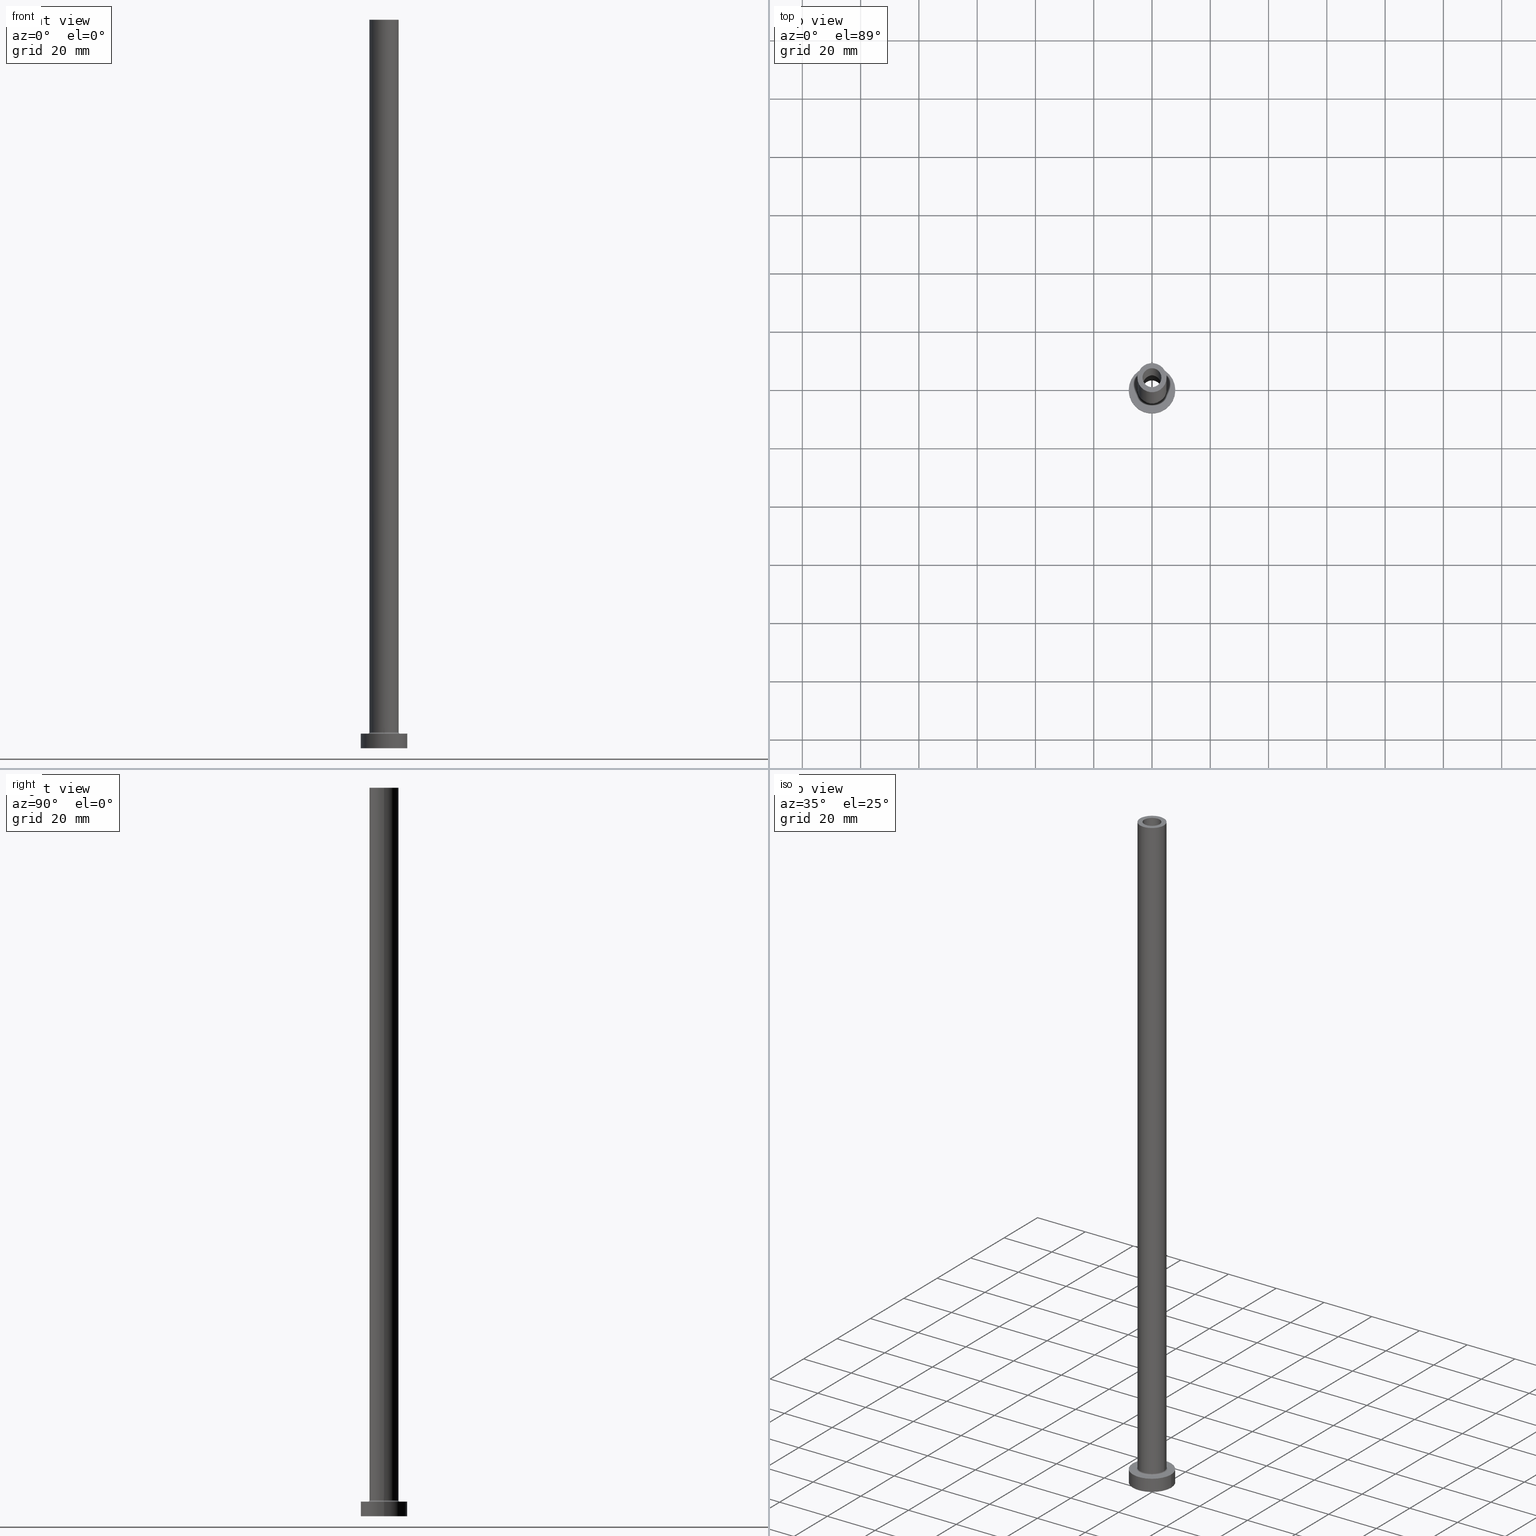
[diagram: canonical four-view strip — front | top / right | iso, engineering-drawing reading convention]
A machine part, canonical four-view strip (front | top / right | iso — engineering-drawing reading convention). The complete STEP part file that produces these views, byte-faithful:
ISO-10303-21;
HEADER;
FILE_DESCRIPTION (( 'STEP AP203' ),
    '1' );
FILE_NAME ('ba3c.STEP',
    '2023-02-13T14:02:09',
    ( '' ),
    ( '' ),
    'SwSTEP 2.0',
    'SolidWorks 2019',
    '' );
FILE_SCHEMA (( 'CONFIG_CONTROL_DESIGN' ));
ENDSEC;

DATA;
#1 = CARTESIAN_POINT ( 'NONE',  ( 3.399999999999999911, 4.163799117101000559E-16, 214.6166522241370558 ) ) ;
#2 = DIRECTION ( 'NONE',  ( -0.000000000000000000, -0.000000000000000000, -1.000000000000000000 ) ) ;
#3 = ORIENTED_EDGE ( 'NONE', *, *, #214, .F. ) ;
#4 = EDGE_CURVE ( 'NONE', #241, #339, #194, .T. ) ;
#5 = DIRECTION ( 'NONE',  ( -0.000000000000000000, -0.000000000000000000, -1.000000000000000000 ) ) ;
#6 = CARTESIAN_POINT ( 'NONE',  ( 0.000000000000000000, 0.000000000000000000, 205.0000000000000284 ) ) ;
#7 = DIRECTION ( 'NONE',  ( 1.000000000000000000, 0.000000000000000000, 0.000000000000000000 ) ) ;
#8 = AXIS2_PLACEMENT_3D ( 'NONE', #31, #451, #276 ) ;
#9 = EDGE_CURVE ( 'NONE', #207, #307, #457, .T. ) ;
#10 = CARTESIAN_POINT ( 'NONE',  ( 0.000000000000000000, 0.000000000000000000, 214.6166522241370558 ) ) ;
#11 = DIRECTION ( 'NONE',  ( 0.000000000000000000, 0.000000000000000000, -1.000000000000000000 ) ) ;
#12 = AXIS2_PLACEMENT_3D ( 'NONE', #51, #373, #120 ) ;
#13 = AXIS2_PLACEMENT_3D ( 'NONE', #195, #158, #46 ) ;
#14 = CARTESIAN_POINT ( 'NONE',  ( 5.500000000000000000, 0.000000000000000000, 5.000000000000002665 ) ) ;
#15 = CARTESIAN_POINT ( 'NONE',  ( 0.000000000000000000, 0.000000000000000000, 205.0000000000000284 ) ) ;
#16 = FACE_BOUND ( 'NONE', #212, .T. ) ;
#17 = LOCAL_TIME ( 15, 2, 9.000000000000000000, #349 ) ;
#18 = CYLINDRICAL_SURFACE ( 'NONE', #292, 5.000000000000000000 ) ;
#19 = DIRECTION ( 'NONE',  ( 1.000000000000000000, 0.000000000000000000, -0.000000000000000000 ) ) ;
#20 =( LENGTH_UNIT ( ) NAMED_UNIT ( * ) SI_UNIT ( .MILLI., .METRE. ) );
#21 = EDGE_LOOP ( 'NONE', ( #450, #33, #284, #213 ) ) ;
#22 = ADVANCED_FACE ( 'NONE', ( #83 ), #225, .T. ) ;
#23 = FACE_BOUND ( 'NONE', #374, .T. ) ;
#24 = DIRECTION ( 'NONE',  ( -1.000000000000000000, 1.224646799147351482E-16, 0.000000000000000000 ) ) ;
#25 = CIRCLE ( 'NONE', #240, 3.250000000000000444 ) ;
#26 = ORIENTED_EDGE ( 'NONE', *, *, #299, .T. ) ;
#27 = VERTEX_POINT ( 'NONE', #157 ) ;
#28 = PERSON_AND_ORGANIZATION ( #320, #62 ) ;
#29 = ORIENTED_EDGE ( 'NONE', *, *, #275, .T. ) ;
#30 = CIRCLE ( 'NONE', #305, 3.399999999999999911 ) ;
#31 = CARTESIAN_POINT ( 'NONE',  ( 0.000000000000000000, 0.000000000000000000, 0.000000000000000000 ) ) ;
#32 = CARTESIAN_POINT ( 'NONE',  ( 0.000000000000000000, 0.000000000000000000, 5.000000000000000000 ) ) ;
#33 = ORIENTED_EDGE ( 'NONE', *, *, #121, .T. ) ;
#34 = CARTESIAN_POINT ( 'NONE',  ( -3.250000000000000444, 0.000000000000000000, 205.0000000000000284 ) ) ;
#35 = CARTESIAN_POINT ( 'NONE',  ( 0.000000000000000000, 0.000000000000000000, 5.000000000000000000 ) ) ;
#36 = EDGE_CURVE ( 'NONE', #307, #207, #455, .T. ) ;
#37 = DIRECTION ( 'NONE',  ( 0.000000000000000000, 0.000000000000000000, -1.000000000000000000 ) ) ;
#38 = CARTESIAN_POINT ( 'NONE',  ( 3.399999999999999911, 4.163799117101000559E-16, 0.000000000000000000 ) ) ;
#39 = AXIS2_PLACEMENT_3D ( 'NONE', #220, #285, #218 ) ;
#40 = CIRCLE ( 'NONE', #446, 3.399999999999999911 ) ;
#41 = LINE ( 'NONE', #334, #406 ) ;
#42 = DIRECTION ( 'NONE',  ( 0.000000000000000000, 0.000000000000000000, 1.000000000000000000 ) ) ;
#43 = EDGE_CURVE ( 'NONE', #210, #159, #350, .T. ) ;
#44 = VECTOR ( 'NONE', #369, 1000.000000000000000 ) ;
#45 = CARTESIAN_POINT ( 'NONE',  ( 0.000000000000000000, 0.000000000000000000, 250.0000000000000000 ) ) ;
#46 = DIRECTION ( 'NONE',  ( -1.000000000000000000, 0.000000000000000000, 0.000000000000000000 ) ) ;
#47 = CIRCLE ( 'NONE', #136, 0.5000000000000004441 ) ;
#48 = FACE_OUTER_BOUND ( 'NONE', #216, .T. ) ;
#49 = APPROVAL ( #54, 'NEUR�EN�' ) ;
#50 = DIRECTION ( 'NONE',  ( 0.000000000000000000, 0.000000000000000000, 1.000000000000000000 ) ) ;
#51 = CARTESIAN_POINT ( 'NONE',  ( 0.000000000000000000, 0.000000000000000000, 0.000000000000000000 ) ) ;
#52 = LOCAL_TIME ( 15, 2, 9.000000000000000000, #130 ) ;
#53 = ORIENTED_EDGE ( 'NONE', *, *, #74, .T. ) ;
#54 = APPROVAL_STATUS ( 'not_yet_approved' ) ;
#55 = ORIENTED_EDGE ( 'NONE', *, *, #121, .F. ) ;
#56 = EDGE_LOOP ( 'NONE', ( #163, #90 ) ) ;
#57 = DIRECTION ( 'NONE',  ( 0.000000000000000000, 0.000000000000000000, 1.000000000000000000 ) ) ;
#58 = EDGE_LOOP ( 'NONE', ( #53, #141, #422, #70 ) ) ;
#59 = ORIENTED_EDGE ( 'NONE', *, *, #103, .T. ) ;
#60 = APPROVAL_ROLE ( '' ) ;
#61 = PRODUCT_DEFINITION ( 'NEZN�M�', '', #175, #391 ) ;
#62 = ORGANIZATION ( 'NEUR�EN�', 'NEUR�EN�', '' ) ;
#63 = APPROVAL_DATE_TIME ( #200, #49 ) ;
#64 = CC_DESIGN_SECURITY_CLASSIFICATION ( #410, ( #175 ) ) ;
#65 = DIRECTION ( 'NONE',  ( 0.000000000000000000, 0.000000000000000000, 1.000000000000000000 ) ) ;
#66 = ORIENTED_EDGE ( 'NONE', *, *, #145, .F. ) ;
#67 = AXIS2_PLACEMENT_3D ( 'NONE', #45, #190, #333 ) ;
#68 = AXIS2_PLACEMENT_3D ( 'NONE', #370, #442, #24 ) ;
#69 = DIRECTION ( 'NONE',  ( -0.000000000000000000, -0.000000000000000000, -1.000000000000000000 ) ) ;
#70 = ORIENTED_EDGE ( 'NONE', *, *, #275, .F. ) ;
#71 = FACE_OUTER_BOUND ( 'NONE', #416, .T. ) ;
#72 = ORIENTED_EDGE ( 'NONE', *, *, #87, .T. ) ;
#73 = DIRECTION ( 'NONE',  ( -0.000000000000000000, -0.000000000000000000, -1.000000000000000000 ) ) ;
#74 = EDGE_CURVE ( 'NONE', #27, #98, #365, .T. ) ;
#75 = FACE_OUTER_BOUND ( 'NONE', #412, .T. ) ;
#76 = VECTOR ( 'NONE', #73, 1000.000000000000000 ) ;
#77 = DIRECTION ( 'NONE',  ( 0.000000000000000000, 0.000000000000000000, 1.000000000000000000 ) ) ;
#78 = CARTESIAN_POINT ( 'NONE',  ( 0.000000000000000000, 0.000000000000000000, 5.000000000000000000 ) ) ;
#79 = CARTESIAN_POINT ( 'NONE',  ( 0.000000000000000000, 0.000000000000000000, 250.0000000000000000 ) ) ;
#80 = CARTESIAN_POINT ( 'NONE',  ( -3.399999999999999911, 0.000000000000000000, 205.0000000000000284 ) ) ;
#81 = PRODUCT_RELATED_PRODUCT_CATEGORY ( 'detail', '', ( #197 ) ) ;
#82 =( NAMED_UNIT ( * ) PLANE_ANGLE_UNIT ( ) SI_UNIT ( $, .RADIAN. ) );
#83 = FACE_OUTER_BOUND ( 'NONE', #126, .T. ) ;
#84 = DIRECTION ( 'NONE',  ( 0.000000000000000000, 0.000000000000000000, 1.000000000000000000 ) ) ;
#85 = DIRECTION ( 'NONE',  ( -1.000000000000000000, 0.000000000000000000, 0.000000000000000000 ) ) ;
#86 = CARTESIAN_POINT ( 'NONE',  ( 3.399999999999999911, 4.163799117101000559E-16, 205.0000000000000284 ) ) ;
#87 = EDGE_CURVE ( 'NONE', #310, #286, #184, .T. ) ;
#88 = AXIS2_PLACEMENT_3D ( 'NONE', #327, #392, #430 ) ;
#89 = CIRCLE ( 'NONE', #39, 5.000000000000000000 ) ;
#90 = ORIENTED_EDGE ( 'NONE', *, *, #9, .T. ) ;
#91 = ORIENTED_EDGE ( 'NONE', *, *, #336, .T. ) ;
#92 = DATE_TIME_ROLE ( 'classification_date' ) ;
#93 = VERTEX_POINT ( 'NONE', #80 ) ;
#94 = ORIENTED_EDGE ( 'NONE', *, *, #192, .T. ) ;
#95 = CALENDAR_DATE ( 2023, 13, 2 ) ;
#96 = ORIENTED_EDGE ( 'NONE', *, *, #428, .T. ) ;
#97 = ADVANCED_FACE ( 'NONE', ( #456, #278 ), #323, .F. ) ;
#98 = VERTEX_POINT ( 'NONE', #237 ) ;
#99 = APPROVAL_ROLE ( '' ) ;
#100 = EDGE_LOOP ( 'NONE', ( #280, #271 ) ) ;
#101 = DATE_AND_TIME ( #95, #357 ) ;
#102 = ORIENTED_EDGE ( 'NONE', *, *, #4, .T. ) ;
#103 = EDGE_CURVE ( 'NONE', #339, #241, #30, .T. ) ;
#104 = APPROVAL_PERSON_ORGANIZATION ( #28, #152, #60 ) ;
#105 = EDGE_LOOP ( 'NONE', ( #55, #3, #134, #302 ) ) ;
#106 = DIRECTION ( 'NONE',  ( 1.000000000000000000, 0.000000000000000000, 0.000000000000000000 ) ) ;
#107 = ORIENTED_EDGE ( 'NONE', *, *, #43, .F. ) ;
#108 = CARTESIAN_POINT ( 'NONE',  ( 0.000000000000000000, 0.000000000000000000, 5.500000000000005329 ) ) ;
#109 = LOCAL_TIME ( 15, 2, 9.000000000000000000, #202 ) ;
#110 = EDGE_CURVE ( 'NONE', #129, #241, #460, .T. ) ;
#111 = AXIS2_PLACEMENT_3D ( 'NONE', #32, #77, #398 ) ;
#112 = CARTESIAN_POINT ( 'NONE',  ( 0.000000000000000000, 0.000000000000000000, 5.500000000000005329 ) ) ;
#113 = CIRCLE ( 'NONE', #173, 3.250000000000000444 ) ;
#114 = DIRECTION ( 'NONE',  ( -1.000000000000000000, 0.000000000000000000, 0.000000000000000000 ) ) ;
#115 = DIRECTION ( 'NONE',  ( 0.000000000000000000, 0.000000000000000000, 1.000000000000000000 ) ) ;
#116 = FACE_OUTER_BOUND ( 'NONE', #319, .T. ) ;
#117 = EDGE_CURVE ( 'NONE', #444, #123, #335, .T. ) ;
#118 = DIRECTION ( 'NONE',  ( 1.000000000000000000, 0.000000000000000000, 0.000000000000000000 ) ) ;
#119 = DIRECTION ( 'NONE',  ( -0.000000000000000000, -0.000000000000000000, -1.000000000000000000 ) ) ;
#120 = DIRECTION ( 'NONE',  ( 1.000000000000000000, 0.000000000000000000, 0.000000000000000000 ) ) ;
#121 = EDGE_CURVE ( 'NONE', #444, #407, #127, .T. ) ;
#122 = DIRECTION ( 'NONE',  ( 1.000000000000000000, 0.000000000000000000, -0.000000000000000000 ) ) ;
#123 = VERTEX_POINT ( 'NONE', #295 ) ;
#124 = CIRCLE ( 'NONE', #209, 5.500000000000000000 ) ;
#125 = DIRECTION ( 'NONE',  ( 1.000000000000000000, 0.000000000000000000, 0.000000000000000000 ) ) ;
#126 = EDGE_LOOP ( 'NONE', ( #358, #388, #239, #338 ) ) ;
#127 = CIRCLE ( 'NONE', #68, 0.5000000000000004441 ) ;
#128 = ORIENTED_EDGE ( 'NONE', *, *, #428, .F. ) ;
#129 = VERTEX_POINT ( 'NONE', #86 ) ;
#130 = COORDINATED_UNIVERSAL_TIME_OFFSET ( 1, 0, .AHEAD. ) ;
#131 = CC_DESIGN_PERSON_AND_ORGANIZATION_ASSIGNMENT ( #454, #236, ( #61 ) ) ;
#132 = CC_DESIGN_APPROVAL ( #152, ( #410 ) ) ;
#133 = ORIENTED_EDGE ( 'NONE', *, *, #214, .T. ) ;
#134 = ORIENTED_EDGE ( 'NONE', *, *, #261, .T. ) ;
#135 = CALENDAR_DATE ( 2023, 13, 2 ) ;
#136 = AXIS2_PLACEMENT_3D ( 'NONE', #360, #185, #355 ) ;
#137 = PERSON_AND_ORGANIZATION_ROLE ( 'classification_officer' ) ;
#138 = EDGE_CURVE ( 'NONE', #286, #310, #25, .T. ) ;
#139 = CIRCLE ( 'NONE', #257, 8.000000000000000000 ) ;
#140 = CALENDAR_DATE ( 2023, 13, 2 ) ;
#141 = ORIENTED_EDGE ( 'NONE', *, *, #344, .T. ) ;
#142 = DIRECTION ( 'NONE',  ( 0.000000000000000000, 0.000000000000000000, 1.000000000000000000 ) ) ;
#143 = VERTEX_POINT ( 'NONE', #436 ) ;
#144 = CARTESIAN_POINT ( 'NONE',  ( 0.000000000000000000, 0.000000000000000000, 250.0000000000000000 ) ) ;
#145 = EDGE_CURVE ( 'NONE', #129, #93, #40, .T. ) ;
#146 = FACE_OUTER_BOUND ( 'NONE', #325, .T. ) ;
#147 = AXIS2_PLACEMENT_3D ( 'NONE', #112, #291, #245 ) ;
#148 = FACE_OUTER_BOUND ( 'NONE', #105, .T. ) ;
#149 = DIRECTION ( 'NONE',  ( 1.000000000000000000, 0.000000000000000000, 0.000000000000000000 ) ) ;
#150 = AXIS2_PLACEMENT_3D ( 'NONE', #402, #301, #118 ) ;
#151 = CYLINDRICAL_SURFACE ( 'NONE', #170, 3.399999999999999911 ) ;
#152 = APPROVAL ( #308, 'NEUR�EN�' ) ;
#153 = CARTESIAN_POINT ( 'NONE',  ( 0.000000000000000000, 0.000000000000000000, 5.000000000000000000 ) ) ;
#154 = CC_DESIGN_APPROVAL ( #281, ( #175 ) ) ;
#155 = DIRECTION ( 'NONE',  ( -0.000000000000000000, -0.000000000000000000, -1.000000000000000000 ) ) ;
#156 = ADVANCED_FACE ( 'NONE', ( #75 ), #177, .T. ) ;
#157 = CARTESIAN_POINT ( 'NONE',  ( -3.250000000000000444, 0.000000000000000000, 250.0000000000000000 ) ) ;
#158 = DIRECTION ( 'NONE',  ( -0.000000000000000000, -0.000000000000000000, -1.000000000000000000 ) ) ;
#159 = VERTEX_POINT ( 'NONE', #459 ) ;
#160 = DIRECTION ( 'NONE',  ( 0.000000000000000000, 0.000000000000000000, 1.000000000000000000 ) ) ;
#161 = VECTOR ( 'NONE', #424, 1000.000000000000000 ) ;
#162 = ORIENTED_EDGE ( 'NONE', *, *, #87, .F. ) ;
#163 = ORIENTED_EDGE ( 'NONE', *, *, #36, .T. ) ;
#164 = APPLICATION_PROTOCOL_DEFINITION ( 'international standard', 'config_control_design', 1994, #395 ) ;
#165 = ADVANCED_FACE ( 'NONE', ( #254 ), #397, .F. ) ;
#166 = COORDINATED_UNIVERSAL_TIME_OFFSET ( 1, 0, .AHEAD. ) ;
#167 = EDGE_LOOP ( 'NONE', ( #243, #453 ) ) ;
#168 = ORIENTED_EDGE ( 'NONE', *, *, #219, .F. ) ;
#169 = PERSON_AND_ORGANIZATION ( #320, #62 ) ;
#170 = AXIS2_PLACEMENT_3D ( 'NONE', #211, #37, #324 ) ;
#171 = EDGE_CURVE ( 'NONE', #159, #210, #283, .T. ) ;
#172 = PERSON_AND_ORGANIZATION ( #320, #62 ) ;
#173 = AXIS2_PLACEMENT_3D ( 'NONE', #144, #287, #249 ) ;
#174 = PERSON_AND_ORGANIZATION_ROLE ( 'design_owner' ) ;
#175 = PRODUCT_DEFINITION_FORMATION_WITH_SPECIFIED_SOURCE ( 'LIBOVOLN�', '', #197, .NOT_KNOWN. ) ;
#176 = LINE ( 'NONE', #322, #274 ) ;
#177 = CYLINDRICAL_SURFACE ( 'NONE', #372, 8.000000000000000000 ) ;
#178 = UNCERTAINTY_MEASURE_WITH_UNIT (LENGTH_MEASURE( 1.000000000000000082E-05 ), #20, 'distance_accuracy_value', 'NONE');
#179 = CARTESIAN_POINT ( 'NONE',  ( -5.000000000000000000, 0.000000000000000000, 250.0000000000000000 ) ) ;
#180 = EDGE_CURVE ( 'NONE', #159, #143, #181, .T. ) ;
#181 = LINE ( 'NONE', #437, #371 ) ;
#182 = DIRECTION ( 'NONE',  ( -1.000000000000000000, 0.000000000000000000, 0.000000000000000000 ) ) ;
#183 = ADVANCED_FACE ( 'NONE', ( #426 ), #326, .F. ) ;
#184 = CIRCLE ( 'NONE', #242, 3.250000000000000444 ) ;
#185 = DIRECTION ( 'NONE',  ( 0.000000000000000000, -1.000000000000000000, 0.000000000000000000 ) ) ;
#186 = AXIS2_PLACEMENT_3D ( 'NONE', #259, #221, #364 ) ;
#187 = LINE ( 'NONE', #294, #44 ) ;
#188 = DIRECTION ( 'NONE',  ( 1.000000000000000000, 0.000000000000000000, 0.000000000000000000 ) ) ;
#189 = CARTESIAN_POINT ( 'NONE',  ( 0.000000000000000000, 0.000000000000000000, 205.0000000000000284 ) ) ;
#190 = DIRECTION ( 'NONE',  ( -0.000000000000000000, -0.000000000000000000, -1.000000000000000000 ) ) ;
#191 = CARTESIAN_POINT ( 'NONE',  ( -3.399999999999999911, 0.000000000000000000, 0.000000000000000000 ) ) ;
#192 = EDGE_CURVE ( 'NONE', #207, #123, #176, .T. ) ;
#193 = CIRCLE ( 'NONE', #314, 5.500000000000000000 ) ;
#194 = CIRCLE ( 'NONE', #277, 3.399999999999999911 ) ;
#195 = CARTESIAN_POINT ( 'NONE',  ( 0.000000000000000000, 0.000000000000000000, 5.000000000000000000 ) ) ;
#196 = CARTESIAN_POINT ( 'NONE',  ( 0.000000000000000000, 0.000000000000000000, 250.0000000000000000 ) ) ;
#197 = PRODUCT ( 'ba3c', 'ba3c', '', ( #379 ) ) ;
#198 = ORIENTED_EDGE ( 'NONE', *, *, #377, .T. ) ;
#199 = EDGE_CURVE ( 'NONE', #307, #444, #429, .T. ) ;
#200 = DATE_AND_TIME ( #135, #52 ) ;
#201 = PERSON_AND_ORGANIZATION ( #320, #62 ) ;
#202 = COORDINATED_UNIVERSAL_TIME_OFFSET ( 1, 0, .AHEAD. ) ;
#203 = ADVANCED_FACE ( 'NONE', ( #71 ), #251, .F. ) ;
#204 = PERSON_AND_ORGANIZATION ( #320, #62 ) ;
#205 = DIRECTION ( 'NONE',  ( 1.000000000000000000, 0.000000000000000000, 0.000000000000000000 ) ) ;
#206 = CIRCLE ( 'NONE', #12, 8.000000000000000000 ) ;
#207 = VERTEX_POINT ( 'NONE', #289 ) ;
#208 = PERSON_AND_ORGANIZATION_ROLE ( 'creator' ) ;
#209 = AXIS2_PLACEMENT_3D ( 'NONE', #440, #262, #297 ) ;
#210 = VERTEX_POINT ( 'NONE', #215 ) ;
#211 = CARTESIAN_POINT ( 'NONE',  ( 0.000000000000000000, 0.000000000000000000, 214.6166522241370558 ) ) ;
#212 = EDGE_LOOP ( 'NONE', ( #354, #72 ) ) ;
#213 = ORIENTED_EDGE ( 'NONE', *, *, #261, .F. ) ;
#214 = EDGE_CURVE ( 'NONE', #123, #444, #89, .T. ) ;
#215 = CARTESIAN_POINT ( 'NONE',  ( -8.000000000000000000, 0.000000000000000000, 5.000000000000000000 ) ) ;
#216 = EDGE_LOOP ( 'NONE', ( #417, #235, #96, #168 ) ) ;
#217 = CARTESIAN_POINT ( 'NONE',  ( -5.000000000000000000, 0.000000000000000000, 250.0000000000000000 ) ) ;
#218 = DIRECTION ( 'NONE',  ( 1.000000000000000000, 0.000000000000000000, 0.000000000000000000 ) ) ;
#219 = EDGE_CURVE ( 'NONE', #210, #238, #258, .T. ) ;
#220 = CARTESIAN_POINT ( 'NONE',  ( 0.000000000000000000, 0.000000000000000000, 5.500000000000005329 ) ) ;
#221 = DIRECTION ( 'NONE',  ( 0.000000000000000000, 0.000000000000000000, 1.000000000000000000 ) ) ;
#222 = AXIS2_PLACEMENT_3D ( 'NONE', #313, #65, #351 ) ;
#223 = PRODUCT_DEFINITION_SHAPE ( 'NONE', 'NONE',  #61 ) ;
#224 = DIRECTION ( 'NONE',  ( 1.000000000000000000, 0.000000000000000000, -0.000000000000000000 ) ) ;
#225 = CYLINDRICAL_SURFACE ( 'NONE', #67, 5.000000000000000000 ) ;
#226 = DIRECTION ( 'NONE',  ( 1.000000000000000000, 0.000000000000000000, 0.000000000000000000 ) ) ;
#227 = CC_DESIGN_PERSON_AND_ORGANIZATION_ASSIGNMENT ( #169, #174, ( #197 ) ) ;
#228 = FACE_OUTER_BOUND ( 'NONE', #421, .T. ) ;
#229 = ORIENTED_EDGE ( 'NONE', *, *, #110, .T. ) ;
#230 = APPLICATION_PROTOCOL_DEFINITION ( 'international standard', 'config_control_design', 1994, #386 ) ;
#231 = EDGE_LOOP ( 'NONE', ( #346, #279 ) ) ;
#232 = VERTEX_POINT ( 'NONE', #14 ) ;
#233 = PERSON_AND_ORGANIZATION ( #320, #62 ) ;
#234 = ADVANCED_FACE ( 'NONE', ( #116 ), #151, .F. ) ;
#235 = ORIENTED_EDGE ( 'NONE', *, *, #180, .T. ) ;
#236 = PERSON_AND_ORGANIZATION_ROLE ( 'creator' ) ;
#237 = CARTESIAN_POINT ( 'NONE',  ( 3.250000000000000444, 3.980102097228897245E-16, 250.0000000000000000 ) ) ;
#238 = VERTEX_POINT ( 'NONE', #255 ) ;
#239 = ORIENTED_EDGE ( 'NONE', *, *, #199, .T. ) ;
#240 = AXIS2_PLACEMENT_3D ( 'NONE', #341, #57, #250 ) ;
#241 = VERTEX_POINT ( 'NONE', #38 ) ;
#242 = AXIS2_PLACEMENT_3D ( 'NONE', #15, #401, #149 ) ;
#243 = ORIENTED_EDGE ( 'NONE', *, *, #352, .T. ) ;
#244 = CC_DESIGN_PERSON_AND_ORGANIZATION_ASSIGNMENT ( #233, #137, ( #410 ) ) ;
#245 = DIRECTION ( 'NONE',  ( 1.000000000000000000, 0.000000000000000000, 0.000000000000000000 ) ) ;
#246 = CARTESIAN_POINT ( 'NONE',  ( 0.000000000000000000, 0.000000000000000000, 0.000000000000000000 ) ) ;
#247 = DIRECTION ( 'NONE',  ( 0.000000000000000000, 0.000000000000000000, 1.000000000000000000 ) ) ;
#248 = CARTESIAN_POINT ( 'NONE',  ( 0.000000000000000000, 0.000000000000000000, 5.000000000000000000 ) ) ;
#249 = DIRECTION ( 'NONE',  ( 1.000000000000000000, 0.000000000000000000, 0.000000000000000000 ) ) ;
#250 = DIRECTION ( 'NONE',  ( 1.000000000000000000, 0.000000000000000000, 0.000000000000000000 ) ) ;
#251 = CYLINDRICAL_SURFACE ( 'NONE', #88, 3.250000000000000444 ) ;
#252 = ADVANCED_FACE ( 'NONE', ( #148 ), #304, .F. ) ;
#253 = VECTOR ( 'NONE', #363, 1000.000000000000000 ) ;
#254 = FACE_OUTER_BOUND ( 'NONE', #447, .T. ) ;
#255 = CARTESIAN_POINT ( 'NONE',  ( -8.000000000000000000, 0.000000000000000000, 0.000000000000000000 ) ) ;
#256 = DIRECTION ( 'NONE',  ( 0.000000000000000000, 0.000000000000000000, 1.000000000000000000 ) ) ;
#257 = AXIS2_PLACEMENT_3D ( 'NONE', #405, #84, #226 ) ;
#258 = LINE ( 'NONE', #329, #76 ) ;
#259 = CARTESIAN_POINT ( 'NONE',  ( 0.000000000000000000, 0.000000000000000000, 250.0000000000000000 ) ) ;
#260 = CARTESIAN_POINT ( 'NONE',  ( 0.000000000000000000, 0.000000000000000000, 250.0000000000000000 ) ) ;
#261 = EDGE_CURVE ( 'NONE', #123, #232, #47, .T. ) ;
#262 = DIRECTION ( 'NONE',  ( -0.000000000000000000, -0.000000000000000000, -1.000000000000000000 ) ) ;
#263 = CARTESIAN_POINT ( 'NONE',  ( 3.250000000000000444, 3.980102097228897245E-16, 205.0000000000000284 ) ) ;
#264 = ORIENTED_EDGE ( 'NONE', *, *, #74, .F. ) ;
#265 =( NAMED_UNIT ( * ) SI_UNIT ( $, .STERADIAN. ) SOLID_ANGLE_UNIT ( ) );
#266 = AXIS2_PLACEMENT_3D ( 'NONE', #10, #290, #182 ) ;
#267 = ADVANCED_FACE ( 'NONE', ( #434 ), #268, .F. ) ;
#268 = TOROIDAL_SURFACE ( 'NONE', #396, 5.500000000000000000, 0.5000000000000000000 ) ;
#269 = ORIENTED_EDGE ( 'NONE', *, *, #199, .F. ) ;
#270 = PLANE ( 'NONE',  #356 ) ;
#271 = ORIENTED_EDGE ( 'NONE', *, *, #4, .F. ) ;
#272 = ORIENTED_EDGE ( 'NONE', *, *, #344, .F. ) ;
#273 = APPROVAL_ROLE ( '' ) ;
#274 = VECTOR ( 'NONE', #362, 1000.000000000000000 ) ;
#275 = EDGE_CURVE ( 'NONE', #27, #286, #293, .T. ) ;
#276 = DIRECTION ( 'NONE',  ( 1.000000000000000000, 0.000000000000000000, 0.000000000000000000 ) ) ;
#277 = AXIS2_PLACEMENT_3D ( 'NONE', #246, #119, #443 ) ;
#278 = FACE_OUTER_BOUND ( 'NONE', #458, .T. ) ;
#279 = ORIENTED_EDGE ( 'NONE', *, *, #171, .T. ) ;
#280 = ORIENTED_EDGE ( 'NONE', *, *, #103, .F. ) ;
#281 = APPROVAL ( #415, 'NEUR�EN�' ) ;
#282 = CARTESIAN_POINT ( 'NONE',  ( 0.000000000000000000, 0.000000000000000000, 0.000000000000000000 ) ) ;
#283 = CIRCLE ( 'NONE', #111, 8.000000000000000000 ) ;
#284 = ORIENTED_EDGE ( 'NONE', *, *, #352, .F. ) ;
#285 = DIRECTION ( 'NONE',  ( 0.000000000000000000, 0.000000000000000000, 1.000000000000000000 ) ) ;
#286 = VERTEX_POINT ( 'NONE', #34 ) ;
#287 = DIRECTION ( 'NONE',  ( 0.000000000000000000, 0.000000000000000000, 1.000000000000000000 ) ) ;
#288 =( GEOMETRIC_REPRESENTATION_CONTEXT ( 3 ) GLOBAL_UNCERTAINTY_ASSIGNED_CONTEXT ( ( #178 ) ) GLOBAL_UNIT_ASSIGNED_CONTEXT ( ( #20, #82, #265 ) ) REPRESENTATION_CONTEXT ( 'NONE', 'WORKASPACE' ) );
#289 = CARTESIAN_POINT ( 'NONE',  ( 5.000000000000000000, 6.123233995736766282E-16, 250.0000000000000000 ) ) ;
#290 = DIRECTION ( 'NONE',  ( 0.000000000000000000, 0.000000000000000000, -1.000000000000000000 ) ) ;
#291 = DIRECTION ( 'NONE',  ( 0.000000000000000000, 0.000000000000000000, 1.000000000000000000 ) ) ;
#292 = AXIS2_PLACEMENT_3D ( 'NONE', #367, #155, #85 ) ;
#293 = LINE ( 'NONE', #359, #353 ) ;
#294 = CARTESIAN_POINT ( 'NONE',  ( -3.399999999999999911, 0.000000000000000000, 214.6166522241370558 ) ) ;
#295 = CARTESIAN_POINT ( 'NONE',  ( 5.000000000000000000, 6.123233995736766282E-16, 5.500000000000005329 ) ) ;
#296 = EDGE_CURVE ( 'NONE', #407, #232, #193, .T. ) ;
#297 = DIRECTION ( 'NONE',  ( 1.000000000000000000, 0.000000000000000000, 0.000000000000000000 ) ) ;
#298 = PLANE ( 'NONE',  #433 ) ;
#299 = EDGE_CURVE ( 'NONE', #98, #27, #113, .T. ) ;
#300 = ORIENTED_EDGE ( 'NONE', *, *, #299, .F. ) ;
#301 = DIRECTION ( 'NONE',  ( 0.000000000000000000, 0.000000000000000000, 1.000000000000000000 ) ) ;
#302 = ORIENTED_EDGE ( 'NONE', *, *, #296, .F. ) ;
#303 = CYLINDRICAL_SURFACE ( 'NONE', #13, 8.000000000000000000 ) ;
#304 = TOROIDAL_SURFACE ( 'NONE', #147, 5.500000000000000000, 0.5000000000000000000 ) ;
#305 = AXIS2_PLACEMENT_3D ( 'NONE', #420, #69, #205 ) ;
#306 = ORIENTED_EDGE ( 'NONE', *, *, #219, .T. ) ;
#307 = VERTEX_POINT ( 'NONE', #217 ) ;
#308 = APPROVAL_STATUS ( 'not_yet_approved' ) ;
#309 = ADVANCED_FACE ( 'NONE', ( #146 ), #18, .T. ) ;
#310 = VERTEX_POINT ( 'NONE', #263 ) ;
#311 = MANIFOLD_SOLID_BREP ( 'Odebrat vysunut�m4', #414 ) ;
#312 = COORDINATED_UNIVERSAL_TIME_OFFSET ( 1, 0, .AHEAD. ) ;
#313 = CARTESIAN_POINT ( 'NONE',  ( 0.000000000000000000, 0.000000000000000000, 5.500000000000005329 ) ) ;
#314 = AXIS2_PLACEMENT_3D ( 'NONE', #35, #5, #7 ) ;
#315 = DIRECTION ( 'NONE',  ( -1.000000000000000000, 0.000000000000000000, 0.000000000000000000 ) ) ;
#316 = DATE_AND_TIME ( #340, #109 ) ;
#317 = APPROVAL_DATE_TIME ( #101, #281 ) ;
#318 = CC_DESIGN_DATE_AND_TIME_ASSIGNMENT ( #343, #92, ( #410 ) ) ;
#319 = EDGE_LOOP ( 'NONE', ( #452, #348, #385, #59 ) ) ;
#320 = PERSON ( 'NEUR�EN�', 'NEUR�EN�', 'NEUR�EN�', ('NEUR�EN�'), ('NEUR�EN�'), ('NEUR�EN�') ) ;
#321 = CC_DESIGN_APPROVAL ( #49, ( #61 ) ) ;
#322 = CARTESIAN_POINT ( 'NONE',  ( 5.000000000000000000, 6.123233995736766282E-16, 250.0000000000000000 ) ) ;
#323 = PLANE ( 'NONE',  #449 ) ;
#324 = DIRECTION ( 'NONE',  ( -1.000000000000000000, 0.000000000000000000, 0.000000000000000000 ) ) ;
#325 = EDGE_LOOP ( 'NONE', ( #381, #94, #133, #269 ) ) ;
#326 = CYLINDRICAL_SURFACE ( 'NONE', #431, 3.250000000000000444 ) ;
#327 = CARTESIAN_POINT ( 'NONE',  ( 0.000000000000000000, 0.000000000000000000, 250.0000000000000000 ) ) ;
#328 = AXIS2_PLACEMENT_3D ( 'NONE', #78, #256, #188 ) ;
#329 = CARTESIAN_POINT ( 'NONE',  ( -8.000000000000000000, 0.000000000000000000, 5.000000000000000000 ) ) ;
#330 = AXIS2_PLACEMENT_3D ( 'NONE', #79, #247, #368 ) ;
#331 = FACE_OUTER_BOUND ( 'NONE', #231, .T. ) ;
#332 = CARTESIAN_POINT ( 'NONE',  ( -5.500000000000000000, 6.735557395310442023E-16, 5.000000000000002665 ) ) ;
#333 = DIRECTION ( 'NONE',  ( -1.000000000000000000, 0.000000000000000000, 0.000000000000000000 ) ) ;
#334 = CARTESIAN_POINT ( 'NONE',  ( 3.250000000000000444, 3.980102097228897245E-16, 250.0000000000000000 ) ) ;
#335 = CIRCLE ( 'NONE', #222, 5.000000000000000000 ) ;
#336 = EDGE_CURVE ( 'NONE', #93, #129, #384, .T. ) ;
#337 = DIRECTION ( 'NONE',  ( 0.000000000000000000, 0.000000000000000000, -1.000000000000000000 ) ) ;
#338 = ORIENTED_EDGE ( 'NONE', *, *, #117, .T. ) ;
#339 = VERTEX_POINT ( 'NONE', #191 ) ;
#340 = CALENDAR_DATE ( 2023, 13, 2 ) ;
#341 = CARTESIAN_POINT ( 'NONE',  ( 0.000000000000000000, 0.000000000000000000, 205.0000000000000284 ) ) ;
#342 = ORIENTED_EDGE ( 'NONE', *, *, #180, .F. ) ;
#343 = DATE_AND_TIME ( #378, #17 ) ;
#344 = EDGE_CURVE ( 'NONE', #98, #310, #41, .T. ) ;
#345 = DIRECTION ( 'NONE',  ( 0.000000000000000000, 0.000000000000000000, 1.000000000000000000 ) ) ;
#346 = ORIENTED_EDGE ( 'NONE', *, *, #43, .T. ) ;
#347 = APPROVAL_DATE_TIME ( #316, #152 ) ;
#348 = ORIENTED_EDGE ( 'NONE', *, *, #145, .T. ) ;
#349 = COORDINATED_UNIVERSAL_TIME_OFFSET ( 1, 0, .AHEAD. ) ;
#350 = CIRCLE ( 'NONE', #328, 8.000000000000000000 ) ;
#351 = DIRECTION ( 'NONE',  ( 1.000000000000000000, 0.000000000000000000, 0.000000000000000000 ) ) ;
#352 = EDGE_CURVE ( 'NONE', #232, #407, #124, .T. ) ;
#353 = VECTOR ( 'NONE', #387, 1000.000000000000000 ) ;
#354 = ORIENTED_EDGE ( 'NONE', *, *, #138, .T. ) ;
#355 = DIRECTION ( 'NONE',  ( 0.000000000000000000, 0.000000000000000000, -1.000000000000000000 ) ) ;
#356 = AXIS2_PLACEMENT_3D ( 'NONE', #196, #160, #122 ) ;
#357 = LOCAL_TIME ( 15, 2, 9.000000000000000000, #166 ) ;
#358 = ORIENTED_EDGE ( 'NONE', *, *, #192, .F. ) ;
#359 = CARTESIAN_POINT ( 'NONE',  ( -3.250000000000000444, 0.000000000000000000, 250.0000000000000000 ) ) ;
#360 = CARTESIAN_POINT ( 'NONE',  ( 5.500000000000000000, 0.000000000000000000, 5.500000000000005329 ) ) ;
#361 = ADVANCED_FACE ( 'NONE', ( #48 ), #303, .T. ) ;
#362 = DIRECTION ( 'NONE',  ( -0.000000000000000000, -0.000000000000000000, -1.000000000000000000 ) ) ;
#363 = DIRECTION ( 'NONE',  ( -0.000000000000000000, -0.000000000000000000, -1.000000000000000000 ) ) ;
#364 = DIRECTION ( 'NONE',  ( 1.000000000000000000, 0.000000000000000000, 0.000000000000000000 ) ) ;
#365 = CIRCLE ( 'NONE', #186, 3.250000000000000444 ) ;
#366 = CC_DESIGN_DATE_AND_TIME_ASSIGNMENT ( #408, #382, ( #61 ) ) ;
#367 = CARTESIAN_POINT ( 'NONE',  ( 0.000000000000000000, 0.000000000000000000, 250.0000000000000000 ) ) ;
#368 = DIRECTION ( 'NONE',  ( 1.000000000000000000, 0.000000000000000000, 0.000000000000000000 ) ) ;
#369 = DIRECTION ( 'NONE',  ( 0.000000000000000000, 0.000000000000000000, -1.000000000000000000 ) ) ;
#370 = CARTESIAN_POINT ( 'NONE',  ( -5.500000000000000000, 6.735557395310442023E-16, 5.500000000000005329 ) ) ;
#371 = VECTOR ( 'NONE', #2, 1000.000000000000000 ) ;
#372 = AXIS2_PLACEMENT_3D ( 'NONE', #248, #389, #315 ) ;
#373 = DIRECTION ( 'NONE',  ( 0.000000000000000000, 0.000000000000000000, 1.000000000000000000 ) ) ;
#374 = EDGE_LOOP ( 'NONE', ( #264, #300 ) ) ;
#375 = LOCAL_TIME ( 15, 2, 9.000000000000000000, #312 ) ;
#376 = ORIENTED_EDGE ( 'NONE', *, *, #377, .F. ) ;
#377 = EDGE_CURVE ( 'NONE', #238, #143, #206, .T. ) ;
#378 = CALENDAR_DATE ( 2023, 13, 2 ) ;
#379 = MECHANICAL_CONTEXT ( 'NONE', #386, 'mechanical' ) ;
#380 = ADVANCED_FACE ( 'NONE', ( #404, #331 ), #403, .T. ) ;
#381 = ORIENTED_EDGE ( 'NONE', *, *, #9, .F. ) ;
#382 = DATE_TIME_ROLE ( 'creation_date' ) ;
#383 = DIRECTION ( 'NONE',  ( 1.000000000000000000, 0.000000000000000000, -0.000000000000000000 ) ) ;
#384 = CIRCLE ( 'NONE', #150, 3.399999999999999911 ) ;
#385 = ORIENTED_EDGE ( 'NONE', *, *, #435, .T. ) ;
#386 = APPLICATION_CONTEXT ( 'configuration controlled 3d designs of mechanical parts and assemblies' ) ;
#387 = DIRECTION ( 'NONE',  ( 0.000000000000000000, 0.000000000000000000, -1.000000000000000000 ) ) ;
#388 = ORIENTED_EDGE ( 'NONE', *, *, #36, .F. ) ;
#389 = DIRECTION ( 'NONE',  ( -0.000000000000000000, -0.000000000000000000, -1.000000000000000000 ) ) ;
#390 = ADVANCED_FACE ( 'NONE', ( #16, #228 ), #298, .F. ) ;
#391 = DESIGN_CONTEXT ( 'detailed design', #395, 'design' ) ;
#392 = DIRECTION ( 'NONE',  ( 0.000000000000000000, 0.000000000000000000, -1.000000000000000000 ) ) ;
#393 = DIRECTION ( 'NONE',  ( 1.000000000000000000, 0.000000000000000000, 0.000000000000000000 ) ) ;
#394 = ADVANCED_BREP_SHAPE_REPRESENTATION ( 'ba3c', ( #311, #8 ), #288 ) ;
#395 = APPLICATION_CONTEXT ( 'configuration controlled 3d designs of mechanical parts and assemblies' ) ;
#396 = AXIS2_PLACEMENT_3D ( 'NONE', #108, #142, #106 ) ;
#397 = CYLINDRICAL_SURFACE ( 'NONE', #266, 3.399999999999999911 ) ;
#398 = DIRECTION ( 'NONE',  ( 1.000000000000000000, 0.000000000000000000, 0.000000000000000000 ) ) ;
#399 = CC_DESIGN_PERSON_AND_ORGANIZATION_ASSIGNMENT ( #204, #461, ( #175 ) ) ;
#400 = CARTESIAN_POINT ( 'NONE',  ( 0.000000000000000000, 0.000000000000000000, 250.0000000000000000 ) ) ;
#401 = DIRECTION ( 'NONE',  ( 0.000000000000000000, 0.000000000000000000, 1.000000000000000000 ) ) ;
#402 = CARTESIAN_POINT ( 'NONE',  ( 0.000000000000000000, 0.000000000000000000, 205.0000000000000284 ) ) ;
#403 = PLANE ( 'NONE',  #423 ) ;
#404 = FACE_BOUND ( 'NONE', #167, .T. ) ;
#405 = CARTESIAN_POINT ( 'NONE',  ( 0.000000000000000000, 0.000000000000000000, 0.000000000000000000 ) ) ;
#406 = VECTOR ( 'NONE', #337, 1000.000000000000000 ) ;
#407 = VERTEX_POINT ( 'NONE', #332 ) ;
#408 = DATE_AND_TIME ( #140, #375 ) ;
#409 = CC_DESIGN_PERSON_AND_ORGANIZATION_ASSIGNMENT ( #172, #208, ( #175 ) ) ;
#410 = SECURITY_CLASSIFICATION ( '', '', #418 ) ;
#411 = PERSON_AND_ORGANIZATION ( #320, #62 ) ;
#412 = EDGE_LOOP ( 'NONE', ( #342, #107, #306, #198 ) ) ;
#413 = SHAPE_DEFINITION_REPRESENTATION ( #223, #394 ) ;
#414 = CLOSED_SHELL ( 'NONE', ( #183, #165, #267, #309, #361, #156, #380, #97, #22, #448, #252, #234, #390, #203 ) ) ;
#415 = APPROVAL_STATUS ( 'not_yet_approved' ) ;
#416 = EDGE_LOOP ( 'NONE', ( #272, #26, #29, #162 ) ) ;
#417 = ORIENTED_EDGE ( 'NONE', *, *, #171, .F. ) ;
#418 = SECURITY_CLASSIFICATION_LEVEL ( 'unclassified' ) ;
#419 = APPROVAL_PERSON_ORGANIZATION ( #201, #49, #273 ) ;
#420 = CARTESIAN_POINT ( 'NONE',  ( 0.000000000000000000, 0.000000000000000000, 0.000000000000000000 ) ) ;
#421 = EDGE_LOOP ( 'NONE', ( #427, #66 ) ) ;
#422 = ORIENTED_EDGE ( 'NONE', *, *, #138, .F. ) ;
#423 = AXIS2_PLACEMENT_3D ( 'NONE', #153, #42, #19 ) ;
#424 = DIRECTION ( 'NONE',  ( 0.000000000000000000, 0.000000000000000000, -1.000000000000000000 ) ) ;
#425 = ORIENTED_EDGE ( 'NONE', *, *, #435, .F. ) ;
#426 = FACE_OUTER_BOUND ( 'NONE', #58, .T. ) ;
#427 = ORIENTED_EDGE ( 'NONE', *, *, #336, .F. ) ;
#428 = EDGE_CURVE ( 'NONE', #143, #238, #139, .T. ) ;
#429 = LINE ( 'NONE', #179, #253 ) ;
#430 = DIRECTION ( 'NONE',  ( -1.000000000000000000, 0.000000000000000000, 0.000000000000000000 ) ) ;
#431 = AXIS2_PLACEMENT_3D ( 'NONE', #400, #11, #114 ) ;
#432 = AXIS2_PLACEMENT_3D ( 'NONE', #260, #50, #125 ) ;
#433 = AXIS2_PLACEMENT_3D ( 'NONE', #189, #441, #224 ) ;
#434 = FACE_OUTER_BOUND ( 'NONE', #21, .T. ) ;
#435 = EDGE_CURVE ( 'NONE', #93, #339, #187, .T. ) ;
#436 = CARTESIAN_POINT ( 'NONE',  ( 8.000000000000000000, 9.797174393178825657E-16, 0.000000000000000000 ) ) ;
#437 = CARTESIAN_POINT ( 'NONE',  ( 8.000000000000000000, 9.797174393178825657E-16, 5.000000000000000000 ) ) ;
#438 = APPROVAL_PERSON_ORGANIZATION ( #411, #281, #99 ) ;
#439 = FACE_OUTER_BOUND ( 'NONE', #56, .T. ) ;
#440 = CARTESIAN_POINT ( 'NONE',  ( 0.000000000000000000, 0.000000000000000000, 5.000000000000000000 ) ) ;
#441 = DIRECTION ( 'NONE',  ( 0.000000000000000000, 0.000000000000000000, 1.000000000000000000 ) ) ;
#442 = DIRECTION ( 'NONE',  ( 1.224646799147353207E-16, 1.000000000000000000, -0.000000000000000000 ) ) ;
#443 = DIRECTION ( 'NONE',  ( 1.000000000000000000, 0.000000000000000000, 0.000000000000000000 ) ) ;
#444 = VERTEX_POINT ( 'NONE', #445 ) ;
#445 = CARTESIAN_POINT ( 'NONE',  ( -5.000000000000000000, 0.000000000000000000, 5.500000000000005329 ) ) ;
#446 = AXIS2_PLACEMENT_3D ( 'NONE', #6, #115, #393 ) ;
#447 = EDGE_LOOP ( 'NONE', ( #91, #229, #102, #425 ) ) ;
#448 = ADVANCED_FACE ( 'NONE', ( #23, #439 ), #270, .T. ) ;
#449 = AXIS2_PLACEMENT_3D ( 'NONE', #282, #345, #383 ) ;
#450 = ORIENTED_EDGE ( 'NONE', *, *, #117, .F. ) ;
#451 = DIRECTION ( 'NONE',  ( 0.000000000000000000, 0.000000000000000000, 1.000000000000000000 ) ) ;
#452 = ORIENTED_EDGE ( 'NONE', *, *, #110, .F. ) ;
#453 = ORIENTED_EDGE ( 'NONE', *, *, #296, .T. ) ;
#454 = PERSON_AND_ORGANIZATION ( #320, #62 ) ;
#455 = CIRCLE ( 'NONE', #330, 5.000000000000000000 ) ;
#456 = FACE_BOUND ( 'NONE', #100, .T. ) ;
#457 = CIRCLE ( 'NONE', #432, 5.000000000000000000 ) ;
#458 = EDGE_LOOP ( 'NONE', ( #376, #128 ) ) ;
#459 = CARTESIAN_POINT ( 'NONE',  ( 8.000000000000000000, 9.797174393178825657E-16, 5.000000000000000000 ) ) ;
#460 = LINE ( 'NONE', #1, #161 ) ;
#461 = PERSON_AND_ORGANIZATION_ROLE ( 'design_supplier' ) ;
ENDSEC;
END-ISO-10303-21;
